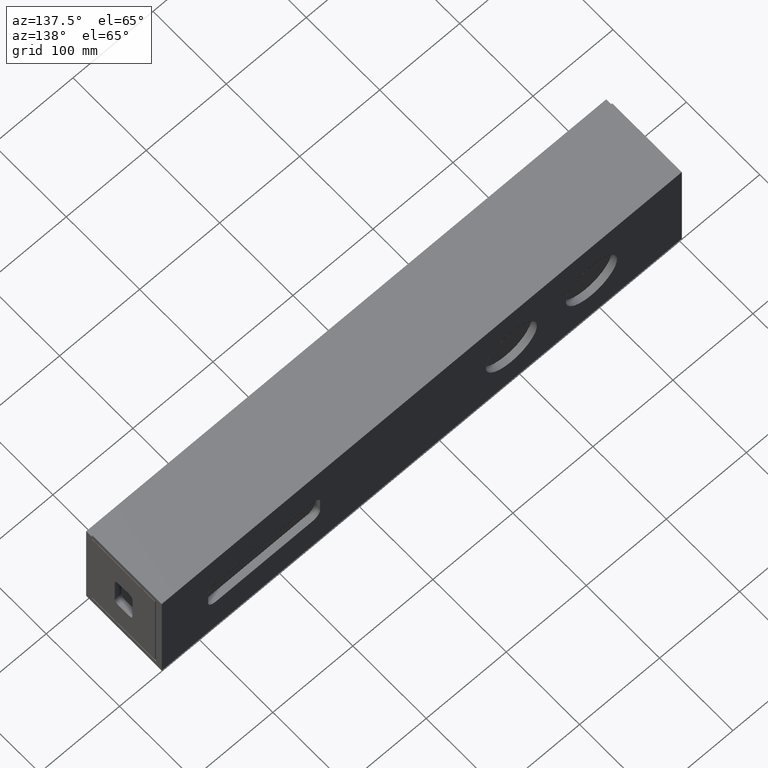
[diagram: clean part render]
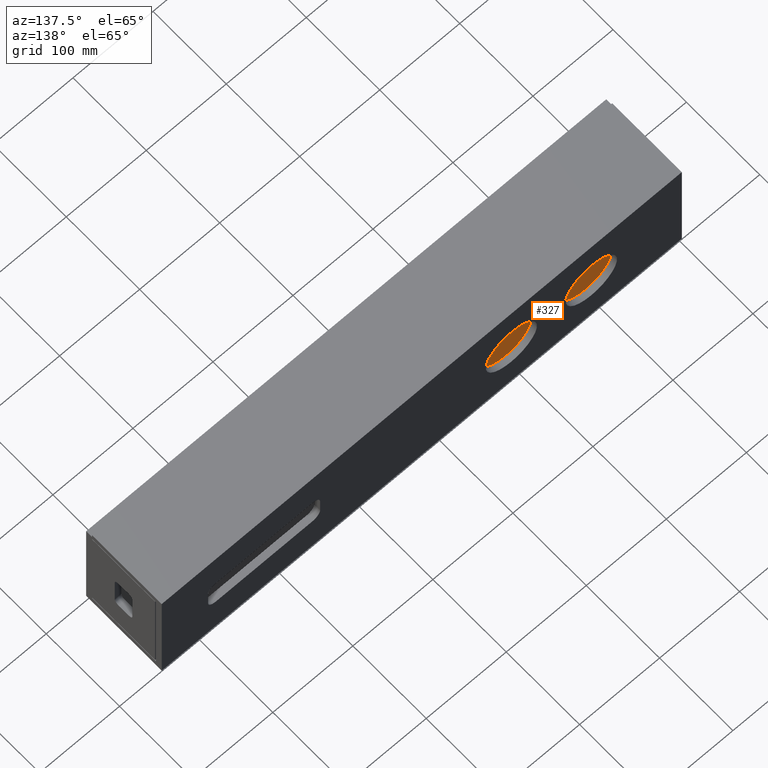
[diagram: same view with one face highlighted and labeled with its STEP entity id]
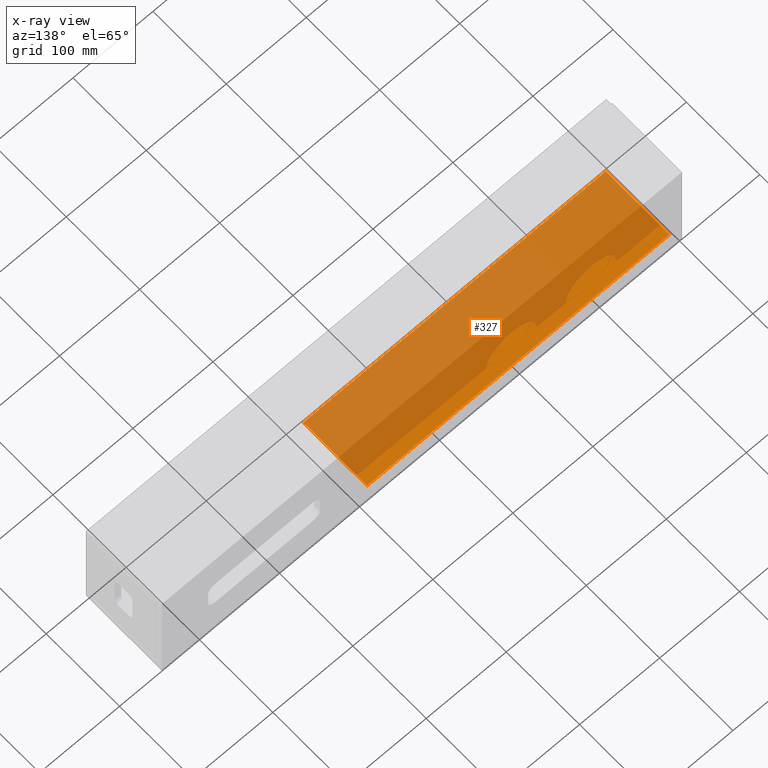
[diagram: x-ray of the same camera — body ghosted, the highlighted face saturated]
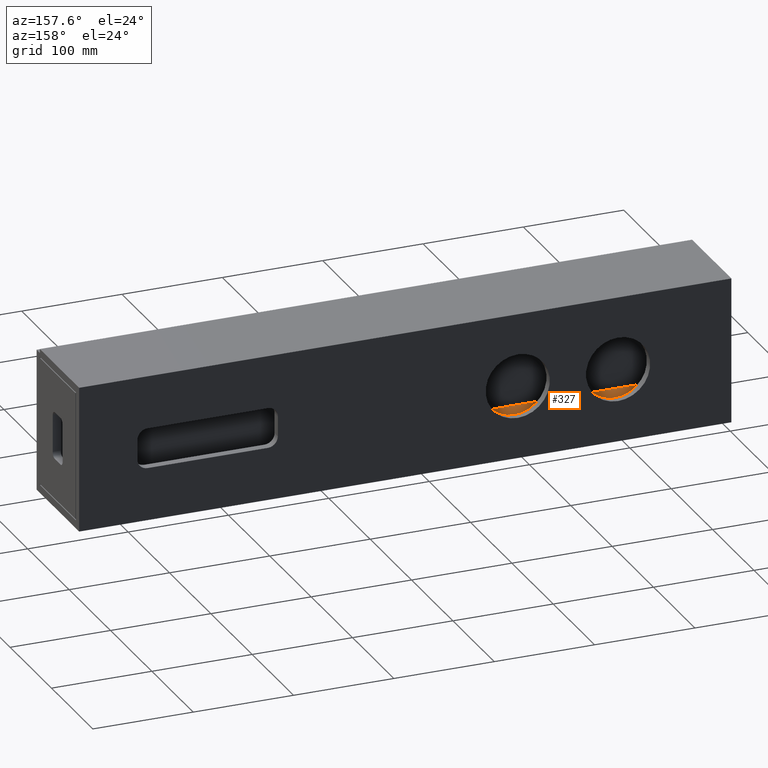
[diagram: same view with one face highlighted and labeled with its STEP entity id]
A machine part, auxiliary view. The second image highlights one B-rep face of the part: STEP entity #327.
The next image is the same camera in x-ray: the body ghosted, the highlighted face saturated — about 81% of this face is hidden behind the body in this view.
A second angle (auxiliary view) of the same face is appended — the face is thin or edge-on in the first view.
In plain terms, the highlighted planar face has unit normal (0, 0, 1).
Its self-contained STEP definition (entity closure, byte-faithful):
#163 = VECTOR ( 'NONE', #448, 1000.000000000000000 ) ;
#176 = DIRECTION ( 'NONE',  ( -1.000000000000000000, -0.0000000000000000000, -0.0000000000000000000 ) ) ;
#204 = VECTOR ( 'NONE', #438, 1000.000000000000000 ) ;
#220 = DIRECTION ( 'NONE',  ( 1.000000000000000000, 0.0000000000000000000, -0.0000000000000000000 ) ) ;
#221 = DIRECTION ( 'NONE',  ( 0.0000000000000000000, 0.0000000000000000000, 1.000000000000000000 ) ) ;
#223 = CARTESIAN_POINT ( 'NONE',  ( 650.0000000000000000, 8.000000000000000000, 8.000000000000000000 ) ) ;
#225 = PLANE ( 'NONE',  #314 ) ;
#226 = FACE_OUTER_BOUND ( 'NONE', #744, .T. ) ;
#255 = EDGE_CURVE ( 'NONE', #1022, #1327, #450, .T. ) ;
#259 = EDGE_CURVE ( 'NONE', #723, #607, #443, .T. ) ;
#314 = AXIS2_PLACEMENT_3D ( 'NONE', #223, #221, #220 ) ;
#327 = ADVANCED_FACE ( 'NONE', ( #226 ), #225, .T. ) ;
#342 = EDGE_CURVE ( 'NONE', #723, #1327, #956, .T. ) ;
#438 = DIRECTION ( 'NONE',  ( 0.0000000000000000000, -1.000000000000000000, 0.0000000000000000000 ) ) ;
#442 = CARTESIAN_POINT ( 'NONE',  ( 385.9999999999999432, 8.000000000000000000, 8.000000000000000000 ) ) ;
#443 = LINE ( 'NONE', #442, #204 ) ;
#448 = DIRECTION ( 'NONE',  ( -0.0000000000000000000, 1.000000000000000000, 0.0000000000000000000 ) ) ;
#449 = CARTESIAN_POINT ( 'NONE',  ( 8.000000000000007105, 8.000000000000000000, 8.000000000000000000 ) ) ;
#450 = LINE ( 'NONE', #449, #163 ) ;
#529 = ORIENTED_EDGE ( 'NONE', *, *, #342, .T. ) ;
#530 = ORIENTED_EDGE ( 'NONE', *, *, #259, .F. ) ;
#533 = ORIENTED_EDGE ( 'NONE', *, *, #255, .F. ) ;
#607 = VERTEX_POINT ( 'NONE', #1454 ) ;
#721 = EDGE_CURVE ( 'NONE', #607, #1022, #1224, .T. ) ;
#723 = VERTEX_POINT ( 'NONE', #1215 ) ;
#744 = EDGE_LOOP ( 'NONE', ( #530, #529, #533, #1306 ) ) ;
#831 = CARTESIAN_POINT ( 'NONE',  ( 8.000000000000007105, 95.00000000000000000, 8.000000000000000000 ) ) ;
#938 = CARTESIAN_POINT ( 'NONE',  ( 8.000000000000007105, 8.000000000000000000, 8.000000000000000000 ) ) ;
#954 = CARTESIAN_POINT ( 'NONE',  ( 650.0000000000000000, 95.00000000000000000, 8.000000000000000000 ) ) ;
#956 = LINE ( 'NONE', #954, #1501 ) ;
#1022 = VERTEX_POINT ( 'NONE', #938 ) ;
#1215 = CARTESIAN_POINT ( 'NONE',  ( 385.9999999999999432, 95.00000000000000000, 8.000000000000000000 ) ) ;
#1218 = DIRECTION ( 'NONE',  ( -1.000000000000000000, -0.0000000000000000000, -0.0000000000000000000 ) ) ;
#1221 = CARTESIAN_POINT ( 'NONE',  ( 650.0000000000000000, 8.000000000000000000, 8.000000000000000000 ) ) ;
#1224 = LINE ( 'NONE', #1221, #1502 ) ;
#1306 = ORIENTED_EDGE ( 'NONE', *, *, #721, .F. ) ;
#1327 = VERTEX_POINT ( 'NONE', #831 ) ;
#1454 = CARTESIAN_POINT ( 'NONE',  ( 385.9999999999999432, 8.000000000000000000, 8.000000000000000000 ) ) ;
#1501 = VECTOR ( 'NONE', #176, 1000.000000000000000 ) ;
#1502 = VECTOR ( 'NONE', #1218, 1000.000000000000000 ) ;